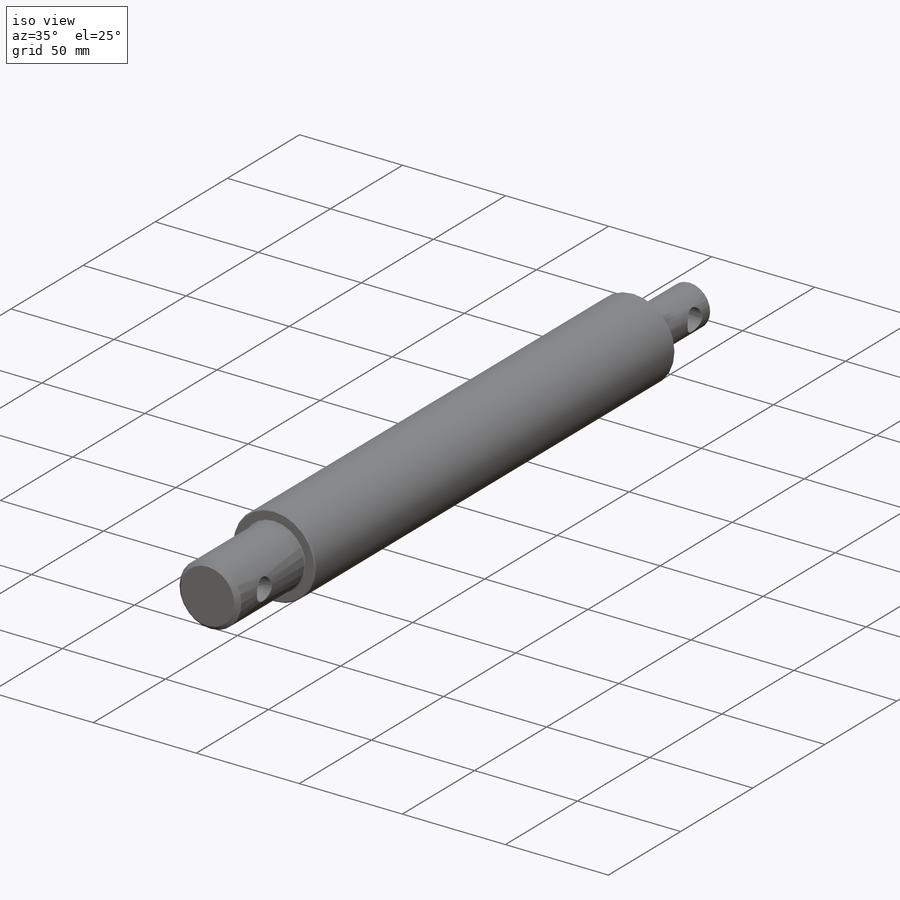
[diagram: iso view]
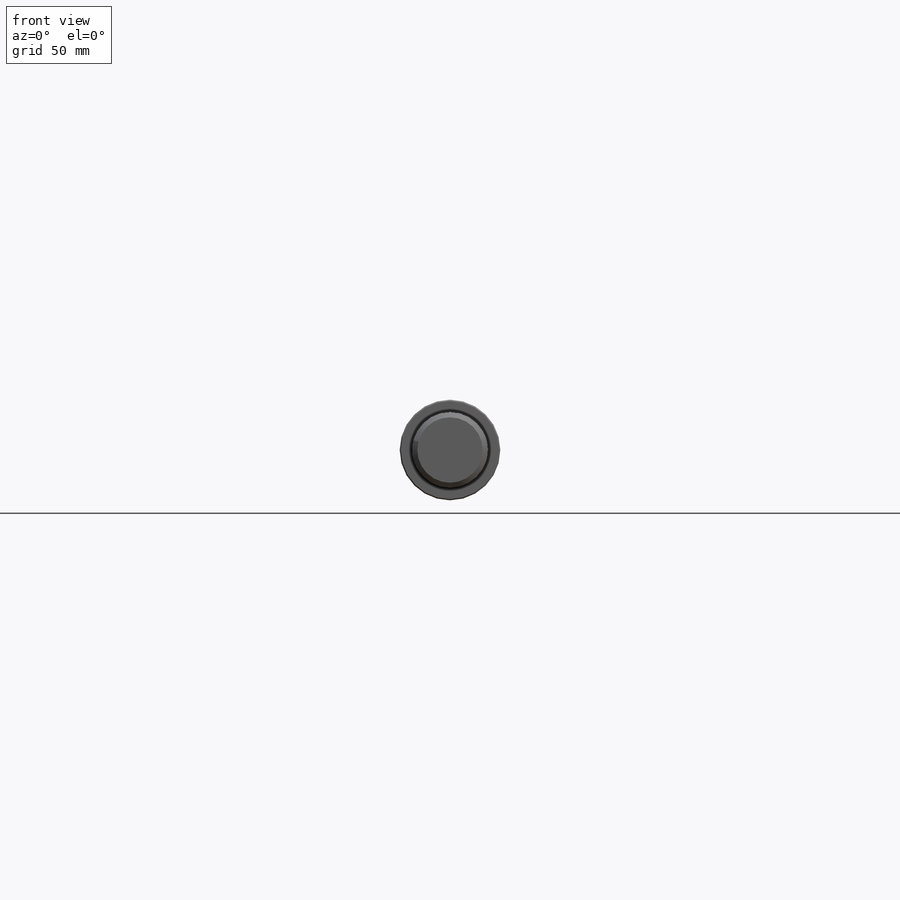
[diagram: front view]
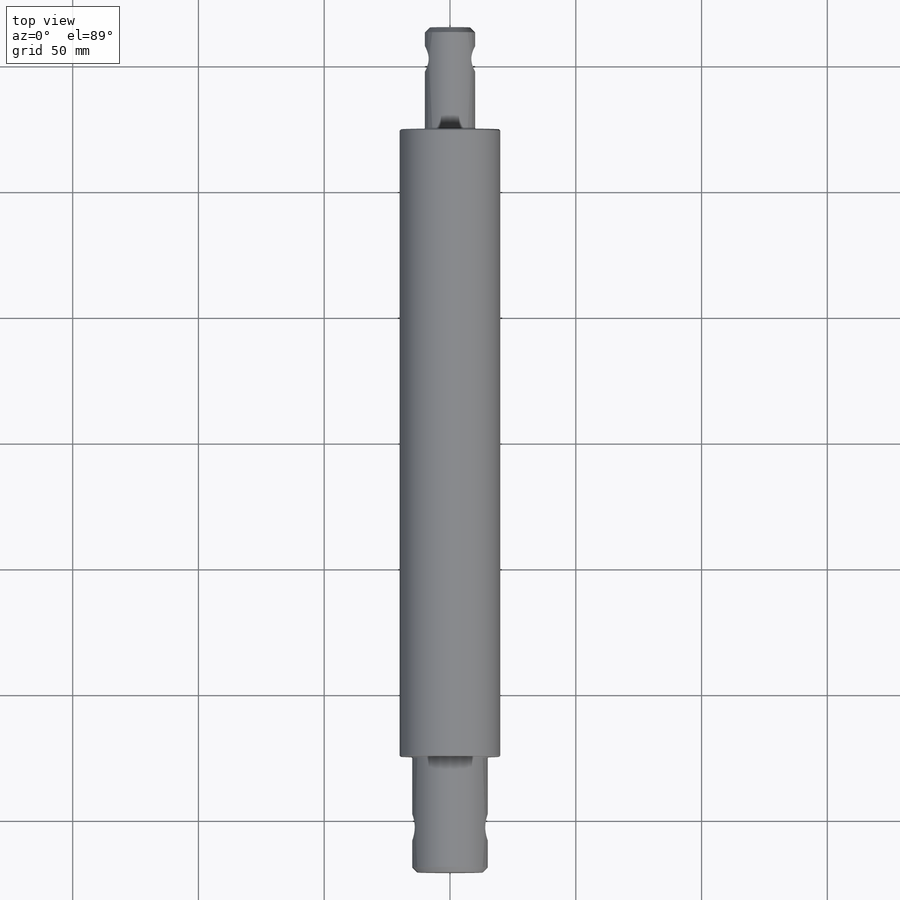
[diagram: top view]
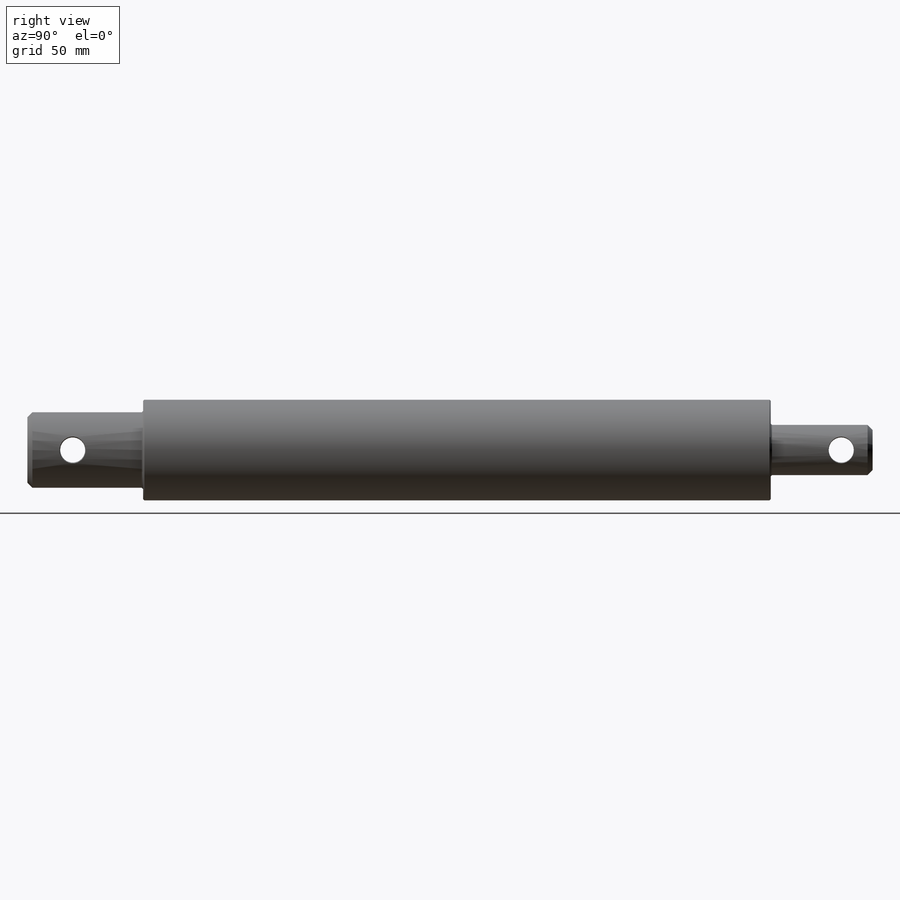
[diagram: right view]
SOLIDWORKS PART (.sldprt)
format: sldprt  version: not decoded by parser v0  size: 377,344 bytes
history: native  units: mm
features: sketch x4, plane x3, extrude x3, chamfer x2, material x1, cut_extrude x1 (+13 scaffold rows collapsed)
feature tree (27):
  scaffold x13  (default folders/planes/origin — collapsed)
  material  "Бук"
  plane  "Спереди"
  plane  "Сверху"
  plane  "Справа"
  sketch  "Эскиз1"  dims[D1=40.0mm]
  extrude  "Бобышка-Вытянуть1"  Depth=249.5mm
  sketch  "Эскиз2"  dims[D1=30.0mm]
  extrude  "Бобышка-Вытянуть2"  Depth=46mm
  sketch  "Эскиз3"  dims[D1=20.0mm]
  extrude  "Бобышка-Вытянуть3"  Depth=40.5mm
  sketch  "Эскиз4"  dims[D1=10.0mm D2=28.0mm D3=28.0mm]
  cut_extrude  "Вырез-Вытянуть1"  Depth=40.5mm
  chamfer  "Фаска1"  Distance=2mm Angle=45deg
  chamfer  "Фаска2"  Distance=0.5mm Angle=45deg
decode coverage: 10 of 10 modeling features carry decoded parameters
note: suppression state not decoded; provenance and decode notes live in map.json
